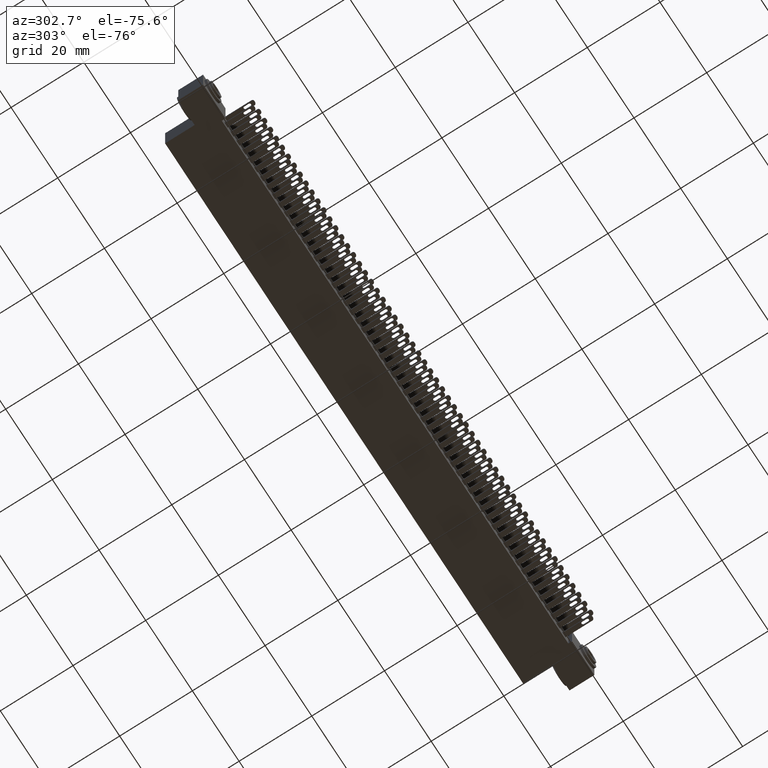
[diagram: clean part render]
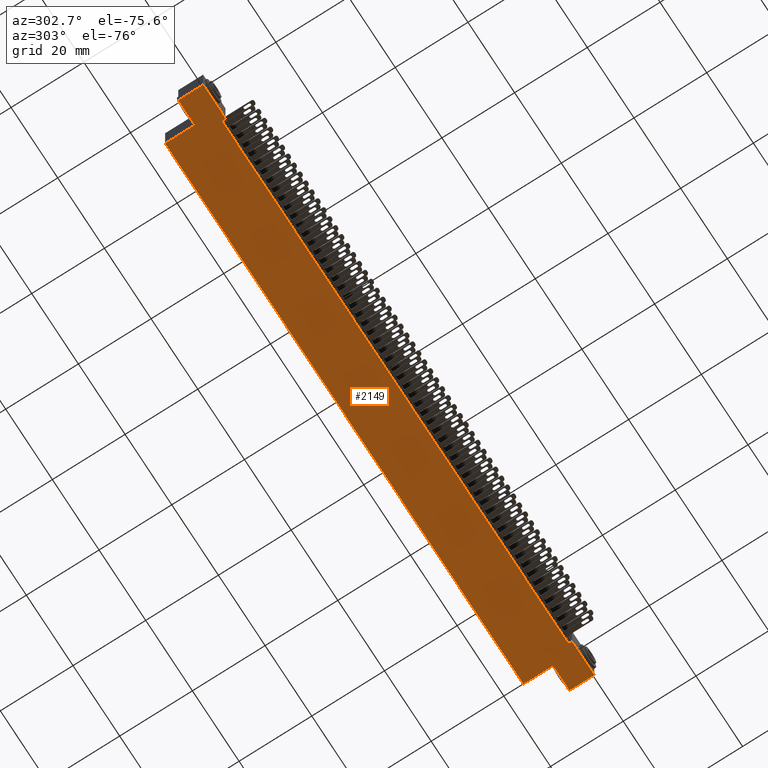
[diagram: same view with one face highlighted and labeled with its STEP entity id]
A machine part, auxiliary view. The second image highlights one B-rep face of the part: STEP entity #2149.
In plain terms, the highlighted planar face has unit normal (0, 0, 1).
Its self-contained STEP definition (entity closure, byte-faithful):
#4 = ORIENTED_EDGE ( 'NONE', *, *, #8850, .F. ) ;
#13 = DIRECTION ( 'NONE',  ( 0.0000000000000000000, 0.0000000000000000000, 1.000000000000000000 ) ) ;
#1350 = DIRECTION ( 'NONE',  ( -0.0000000000000000000, -1.000000000000000000, -0.0000000000000000000 ) ) ;
#2147 = DIRECTION ( 'NONE',  ( 1.000000000000000000, 0.0000000000000000000, 1.168255214533125900E-017 ) ) ;
#2149 = ADVANCED_FACE ( 'NONE', ( #8457 ), #8128, .F. ) ;
#2438 = CARTESIAN_POINT ( 'NONE',  ( 6.323000000000002200, 0.2699999999999999600, -0.3700000000000007700 ) ) ;
#2482 = DIRECTION ( 'NONE',  ( -0.0000000000000000000, 1.000000000000000000, -0.0000000000000000000 ) ) ;
#3248 = DIRECTION ( 'NONE',  ( -1.000000000000000000, -0.0000000000000000000, -0.0000000000000000000 ) ) ;
#3483 = VERTEX_POINT ( 'NONE', #8342 ) ;
#3748 = DIRECTION ( 'NONE',  ( -1.000000000000000000, -0.0000000000000000000, -0.0000000000000000000 ) ) ;
#4155 = CARTESIAN_POINT ( 'NONE',  ( -4.695363739110452100E-017, 0.2699999999999999600, -0.3700000000000000000 ) ) ;
#4399 = VECTOR ( 'NONE', #3748, 39.37007874015748100 ) ;
#4471 = VECTOR ( 'NONE', #6914, 39.37007874015748100 ) ;
#5389 = LINE ( 'NONE', #25933, #11839 ) ;
#5847 = VECTOR ( 'NONE', #20764, 39.37007874015748100 ) ;
#6099 = ORIENTED_EDGE ( 'NONE', *, *, #33023, .F. ) ;
#6104 = LINE ( 'NONE', #2438, #21681 ) ;
#6914 = DIRECTION ( 'NONE',  ( -1.000000000000000000, -0.0000000000000000000, -0.0000000000000000000 ) ) ;
#6956 = ORIENTED_EDGE ( 'NONE', *, *, #10995, .T. ) ;
#7062 = EDGE_CURVE ( 'NONE', #13140, #12897, #5389, .T. ) ;
#7349 = CARTESIAN_POINT ( 'NONE',  ( 0.3770000000000000600, 0.0000000000000000000, -0.3700000000000000000 ) ) ;
#7552 = CARTESIAN_POINT ( 'NONE',  ( 0.0000000000000000000, 0.5899999999999999700, -0.3700000000000000000 ) ) ;
#7709 = ORIENTED_EDGE ( 'NONE', *, *, #25389, .F. ) ;
#7719 = CARTESIAN_POINT ( 'NONE',  ( 0.3770000000000000600, 0.04000000000000000100, -0.3700000000000000000 ) ) ;
#8128 = PLANE ( 'NONE',  #32748 ) ;
#8152 = ORIENTED_EDGE ( 'NONE', *, *, #18445, .F. ) ;
#8342 = CARTESIAN_POINT ( 'NONE',  ( 0.2770000000000000200, 0.5899999999999999700, -0.3700000000000000000 ) ) ;
#8457 = FACE_OUTER_BOUND ( 'NONE', #12233, .T. ) ;
#8727 = VERTEX_POINT ( 'NONE', #11177 ) ;
#8850 = EDGE_CURVE ( 'NONE', #26540, #15591, #6104, .T. ) ;
#9378 = LINE ( 'NONE', #21677, #15879 ) ;
#9780 = DIRECTION ( 'NONE',  ( -1.000000000000000000, 0.0000000000000000000, -2.712123459413986900E-015 ) ) ;
#10303 = CARTESIAN_POINT ( 'NONE',  ( 0.3770000000000000600, 0.04000000000000000100, -0.3700000000000000000 ) ) ;
#10697 = VERTEX_POINT ( 'NONE', #31460 ) ;
#10830 = ORIENTED_EDGE ( 'NONE', *, *, #34708, .F. ) ;
#10874 = CARTESIAN_POINT ( 'NONE',  ( 6.600000000000001400, 0.5899999999999999700, -0.3700000000000000000 ) ) ;
#10995 = EDGE_CURVE ( 'NONE', #27580, #24574, #9378, .T. ) ;
#11177 = CARTESIAN_POINT ( 'NONE',  ( 6.600000000000001400, 0.0000000000000000000, -0.3700000000000000000 ) ) ;
#11770 = VERTEX_POINT ( 'NONE', #30689 ) ;
#11839 = VECTOR ( 'NONE', #26128, 39.37007874015748100 ) ;
#11958 = EDGE_CURVE ( 'NONE', #8727, #12897, #20821, .T. ) ;
#12233 = EDGE_LOOP ( 'NONE', ( #18021, #24504, #6099, #6956, #13420, #29895, #10830, #23047, #8152, #4, #7709, #16572 ) ) ;
#12828 = LINE ( 'NONE', #10874, #34039 ) ;
#12897 = VERTEX_POINT ( 'NONE', #17902 ) ;
#13140 = VERTEX_POINT ( 'NONE', #21744 ) ;
#13148 = LINE ( 'NONE', #15088, #5847 ) ;
#13420 = ORIENTED_EDGE ( 'NONE', *, *, #22839, .T. ) ;
#13520 = VERTEX_POINT ( 'NONE', #14932 ) ;
#13582 = LINE ( 'NONE', #10303, #20956 ) ;
#14454 = EDGE_CURVE ( 'NONE', #13520, #8727, #12828, .T. ) ;
#14639 = VECTOR ( 'NONE', #1350, 39.37007874015748100 ) ;
#14932 = CARTESIAN_POINT ( 'NONE',  ( 6.600000000000001400, 0.2699999999999999600, -0.3700000000000000000 ) ) ;
#15088 = CARTESIAN_POINT ( 'NONE',  ( 0.2770000000000000200, 0.2699999999999999600, -0.3700000000000000000 ) ) ;
#15591 = VERTEX_POINT ( 'NONE', #17898 ) ;
#15749 = VECTOR ( 'NONE', #3248, 39.37007874015748100 ) ;
#15879 = VECTOR ( 'NONE', #24308, 39.37007874015748100 ) ;
#16572 = ORIENTED_EDGE ( 'NONE', *, *, #14454, .T. ) ;
#17508 = CARTESIAN_POINT ( 'NONE',  ( 0.0000000000000000000, 0.0000000000000000000, -0.3700000000000000000 ) ) ;
#17898 = CARTESIAN_POINT ( 'NONE',  ( 6.323000000000002200, 0.5899999999999999700, -0.3700000000000000000 ) ) ;
#17902 = CARTESIAN_POINT ( 'NONE',  ( 6.223000000000003400, 0.0000000000000000000, -0.3699999999999999400 ) ) ;
#18021 = ORIENTED_EDGE ( 'NONE', *, *, #11958, .T. ) ;
#18437 = DIRECTION ( 'NONE',  ( -1.000000000000000000, -0.0000000000000000000, -0.0000000000000000000 ) ) ;
#18445 = EDGE_CURVE ( 'NONE', #15591, #3483, #29915, .T. ) ;
#19152 = LINE ( 'NONE', #4155, #4471 ) ;
#19768 = CARTESIAN_POINT ( 'NONE',  ( 0.0000000000000000000, 0.0000000000000000000, -0.3700000000000000000 ) ) ;
#20381 = EDGE_CURVE ( 'NONE', #11770, #10697, #29352, .T. ) ;
#20764 = DIRECTION ( 'NONE',  ( -0.0000000000000000000, 1.000000000000000000, -0.0000000000000000000 ) ) ;
#20821 = LINE ( 'NONE', #17508, #4399 ) ;
#20956 = VECTOR ( 'NONE', #2147, 39.37007874015748100 ) ;
#21677 = CARTESIAN_POINT ( 'NONE',  ( 0.3770000000000000600, 0.04000000000000000100, -0.3700000000000000000 ) ) ;
#21681 = VECTOR ( 'NONE', #2482, 39.37007874015748100 ) ;
#21719 = VECTOR ( 'NONE', #18437, 39.37007874015748100 ) ;
#21744 = CARTESIAN_POINT ( 'NONE',  ( 6.223000000000003400, 0.04000000000000000100, -0.3699999999999999400 ) ) ;
#22239 = LINE ( 'NONE', #19768, #15749 ) ;
#22467 = EDGE_CURVE ( 'NONE', #24831, #3483, #13148, .T. ) ;
#22839 = EDGE_CURVE ( 'NONE', #24574, #10697, #22239, .T. ) ;
#23047 = ORIENTED_EDGE ( 'NONE', *, *, #22467, .T. ) ;
#23472 = VECTOR ( 'NONE', #9780, 39.37007874015748100 ) ;
#24308 = DIRECTION ( 'NONE',  ( -0.0000000000000000000, -1.000000000000000000, -0.0000000000000000000 ) ) ;
#24504 = ORIENTED_EDGE ( 'NONE', *, *, #7062, .F. ) ;
#24574 = VERTEX_POINT ( 'NONE', #7349 ) ;
#24831 = VERTEX_POINT ( 'NONE', #25092 ) ;
#25092 = CARTESIAN_POINT ( 'NONE',  ( 0.2770000000000000200, 0.2699999999999999600, -0.3700000000000000000 ) ) ;
#25389 = EDGE_CURVE ( 'NONE', #13520, #26540, #30829, .T. ) ;
#25933 = CARTESIAN_POINT ( 'NONE',  ( 6.223000000000003400, 0.04000000000000000100, -0.3699999999999999400 ) ) ;
#26128 = DIRECTION ( 'NONE',  ( -0.0000000000000000000, -1.000000000000000000, -0.0000000000000000000 ) ) ;
#26540 = VERTEX_POINT ( 'NONE', #33918 ) ;
#26666 = CARTESIAN_POINT ( 'NONE',  ( 0.0000000000000000000, 0.5899999999999999700, -0.3700000000000000000 ) ) ;
#27580 = VERTEX_POINT ( 'NONE', #7719 ) ;
#29352 = LINE ( 'NONE', #34413, #14639 ) ;
#29895 = ORIENTED_EDGE ( 'NONE', *, *, #20381, .F. ) ;
#29915 = LINE ( 'NONE', #26666, #21719 ) ;
#30689 = CARTESIAN_POINT ( 'NONE',  ( -4.695363739110452100E-017, 0.2699999999999999600, -0.3700000000000000000 ) ) ;
#30829 = LINE ( 'NONE', #31895, #23472 ) ;
#31460 = CARTESIAN_POINT ( 'NONE',  ( 0.0000000000000000000, 0.0000000000000000000, -0.3700000000000000000 ) ) ;
#31895 = CARTESIAN_POINT ( 'NONE',  ( 6.600000000000001400, 0.2699999999999999600, -0.3700000000000000000 ) ) ;
#32748 = AXIS2_PLACEMENT_3D ( 'NONE', #7552, #13, #33021 ) ;
#32995 = DIRECTION ( 'NONE',  ( -0.0000000000000000000, -1.000000000000000000, -0.0000000000000000000 ) ) ;
#33021 = DIRECTION ( 'NONE',  ( 1.000000000000000000, 0.0000000000000000000, -0.0000000000000000000 ) ) ;
#33023 = EDGE_CURVE ( 'NONE', #27580, #13140, #13582, .T. ) ;
#33918 = CARTESIAN_POINT ( 'NONE',  ( 6.323000000000002200, 0.2699999999999999600, -0.3700000000000007700 ) ) ;
#34039 = VECTOR ( 'NONE', #32995, 39.37007874015748100 ) ;
#34413 = CARTESIAN_POINT ( 'NONE',  ( 0.0000000000000000000, 0.5899999999999999700, -0.3700000000000000000 ) ) ;
#34708 = EDGE_CURVE ( 'NONE', #24831, #11770, #19152, .T. ) ;